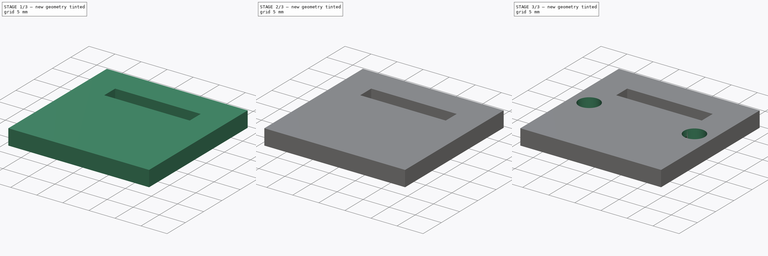
[diagram: build sequence overview — one tinted view per stage of 3, left to right]
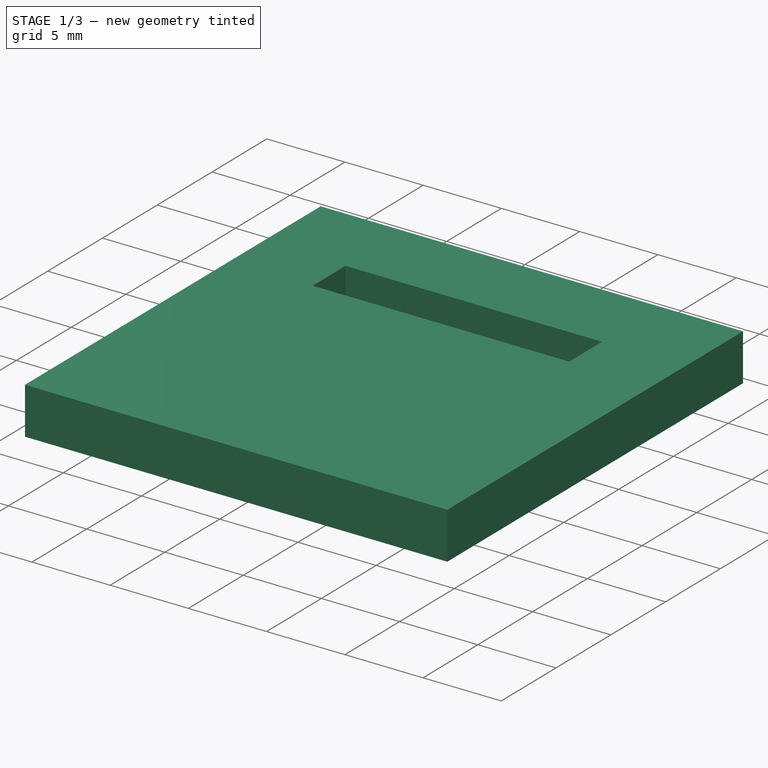
[diagram: stage 1 of 3 — iso view after this stage's code; geometry added in this stage tinted green]
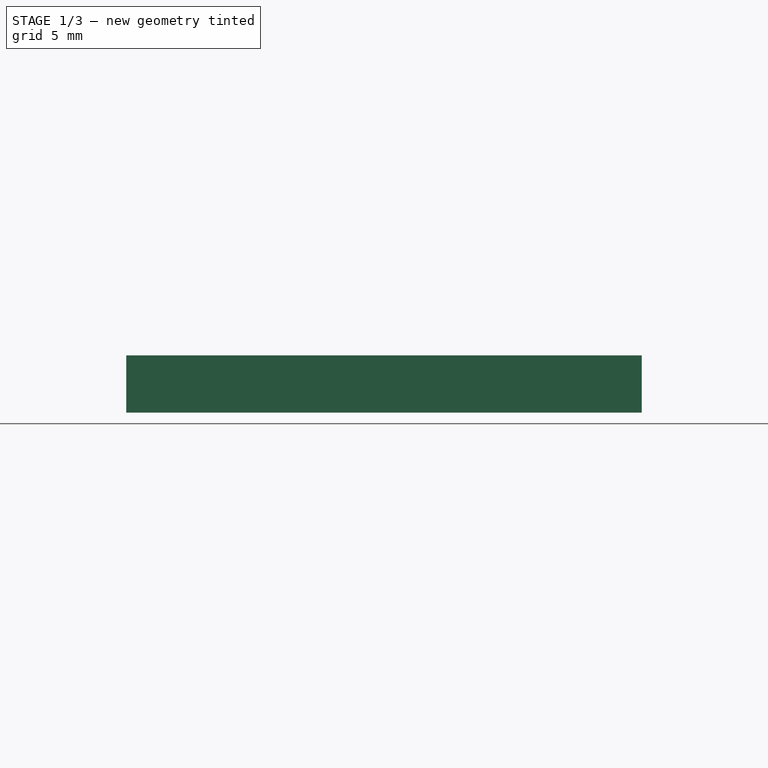
[diagram: stage 1 of 3 — front view after this stage's code; geometry added in this stage tinted green]
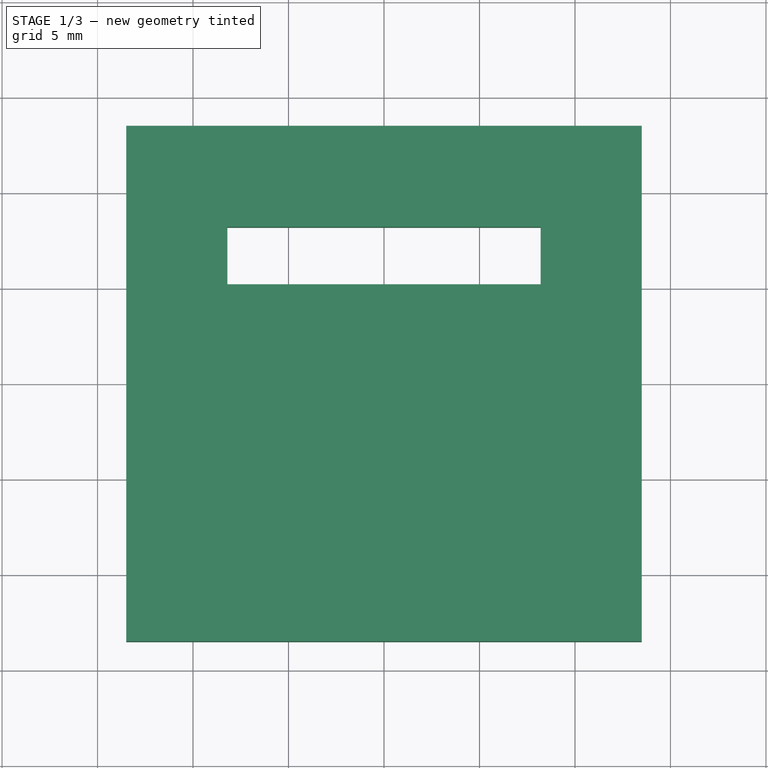
[diagram: stage 1 of 3 — top view after this stage's code; geometry added in this stage tinted green]
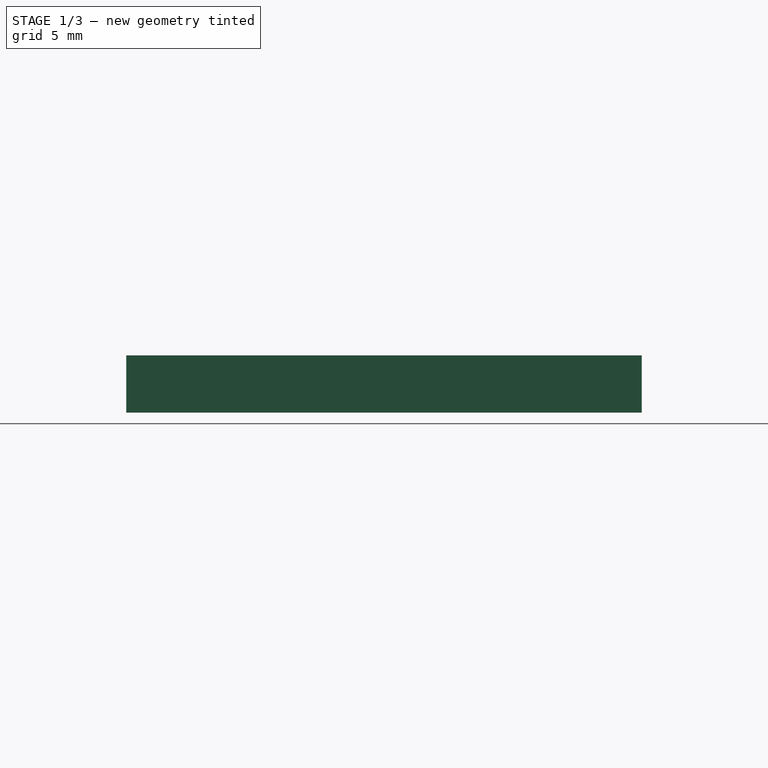
[diagram: stage 1 of 3 — right view after this stage's code; geometry added in this stage tinted green]
FCSTD DOCUMENT  (FreeCAD 0.17R12795 (Git))
Label: ADXL335 0.17 top plate
License: All rights reserved
LicenseURL: http://en.wikipedia.org/wiki/All_rights_reserved
objects: Sketcher::SketchObject×4, PartDesign::Pocket×3, Spreadsheet::Sheet×1, PartDesign::Pad×1, PartDesign::Chamfer×1, PartDesign::Body×1
note: 14 computed .brp shape members not serialized (recipe doc carries the construction recipe); baked Part::Feature solids carry a one-line shape summary decoded from their .brp

FEATURE [Spreadsheet::Sheet] Spreadsheet
  cells = A1=Name; B1=Value; D1=Komment; A2=TP_height; B2(tp_height)=3; D2=TP = Top plate; A3=TP_lenght; B3(tp_length)=27; A4=TP_width; B4(tp_width)=27; A6=Pocket; A7=TP_po_length; B7(tp_po_length)=16.399999999999999; A8=TP_po_width; B8(tp_po_width)=3; A9=TP_po_depth; B9(tp_po_depth)=; A10=TP_po_distance; B10(tp_po_distance)==4.5 + 0.80000000000000004; A12=Pocket001; A13=tp_po_el_depth; B13(tp_po_el_depth)=1.8; A14="tp_po_el_distance; B14(tp_po_el_distance)=2; A15=tp_po_el_width; B15(tp_po_el_width)=16.399999999999999; A16=tp_po_el_length; B16(tp_po_el_length)=11
FEATURE [Sketcher::SketchObject] Sketch
  MapMode = 5
  Support = -> [XY_Plane]
  expr: Constraints[9] = Spreadsheet.tp_length
  expr: Constraints[8] = Spreadsheet.tp_width
  sketch-geometry (4):
    g0: LineSegment StartX=-13.5 StartY=13.5 StartZ=0 EndX=13.5 EndY=13.5 EndZ=0
    g1: LineSegment StartX=13.5 StartY=13.5 StartZ=0 EndX=13.5 EndY=-13.5 EndZ=0
    g2: LineSegment StartX=13.5 StartY=-13.5 StartZ=0 EndX=-13.5 EndY=-13.5 EndZ=0
    g3: LineSegment StartX=-13.5 StartY=-13.5 StartZ=0 EndX=-13.5 EndY=13.5 EndZ=0
  constraints (11):
    c: Coincident(g0,g1)
    c: Coincident(g1,g2)
    c: Coincident(g2,g3)
    c: Coincident(g3,g0)
    c: Horizontal(g0)
    c: Horizontal(g2)
    c: Vertical(g1)
    c: Vertical(g3)
    c: DistanceX(g0,g0) = 27
    c: DistanceY(g1,g1) = 27
    c: Symmetric(g0,g1,g-1)
FEATURE [PartDesign::Pad] Pad
  Length = 3
  Length2 = 100
  Profile = -> Sketch
  Type = 0
  expr: Length = Spreadsheet.tp_height
FEATURE [Sketcher::SketchObject] Sketch001
  ExternalGeometry = -> [Pad]
  MapMode = 5
  Placement = pos=(0,0,0) rot=(1,0,0;3.14159rad)
  Support = -> [Pad]
  expr: Constraints[10] = Spreadsheet.tp_po_length
  expr: Constraints[9] = Spreadsheet.tp_po_width
  expr: Constraints[8] = Spreadsheet.tp_po_distance
  sketch-geometry (4):
    g0: LineSegment StartX=8.2 StartY=-8.2 StartZ=0 EndX=-8.2 EndY=-8.2 EndZ=0
    g1: LineSegment StartX=-8.2 StartY=-8.2 StartZ=0 EndX=-8.2 EndY=-5.2 EndZ=0
    g2: LineSegment StartX=-8.2 StartY=-5.2 StartZ=0 EndX=8.2 EndY=-5.2 EndZ=0
    g3: LineSegment StartX=8.2 StartY=-5.2 StartZ=0 EndX=8.2 EndY=-8.2 EndZ=0
  constraints (12):
    c: Coincident(g0,g1)
    c: Coincident(g1,g2)
    c: Coincident(g2,g3)
    c: Coincident(g3,g0)
    c: Horizontal(g0)
    c: Horizontal(g2)
    c: Vertical(g1)
    c: Vertical(g3)
    c: DistanceY(g-3,g0) = 5.3
    c: DistanceY(g3,g3) = 3
    c: DistanceX(g0,g0) = 16.4
    c: Symmetric(g2,g1,g-2)
FEATURE [PartDesign::Pocket] Pocket
  BaseFeature = -> Pad
  Length = 5
  Profile = -> Sketch001
  Type = 0
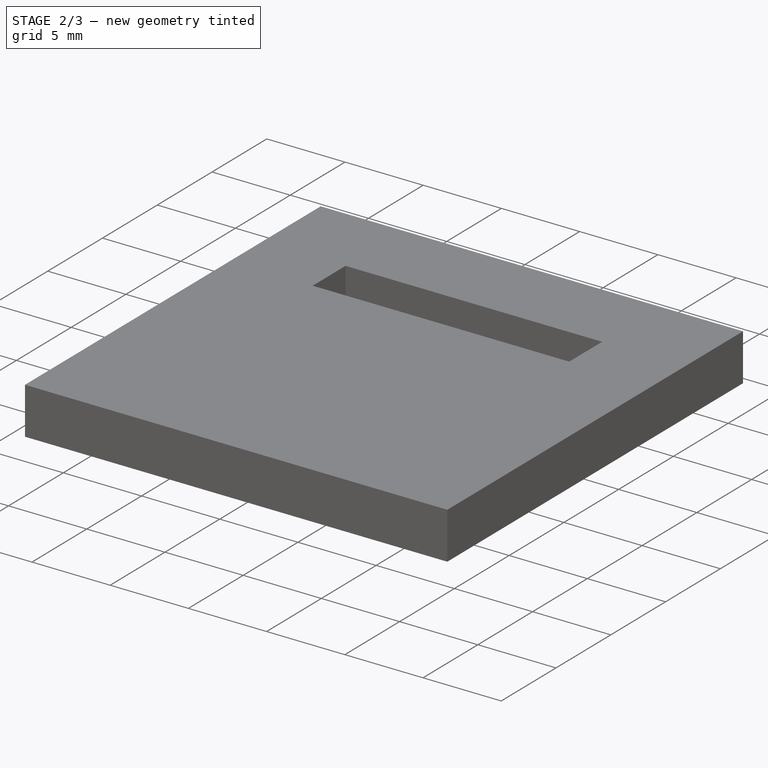
[diagram: stage 2 of 3 — iso view after this stage's code; geometry added in this stage tinted green]
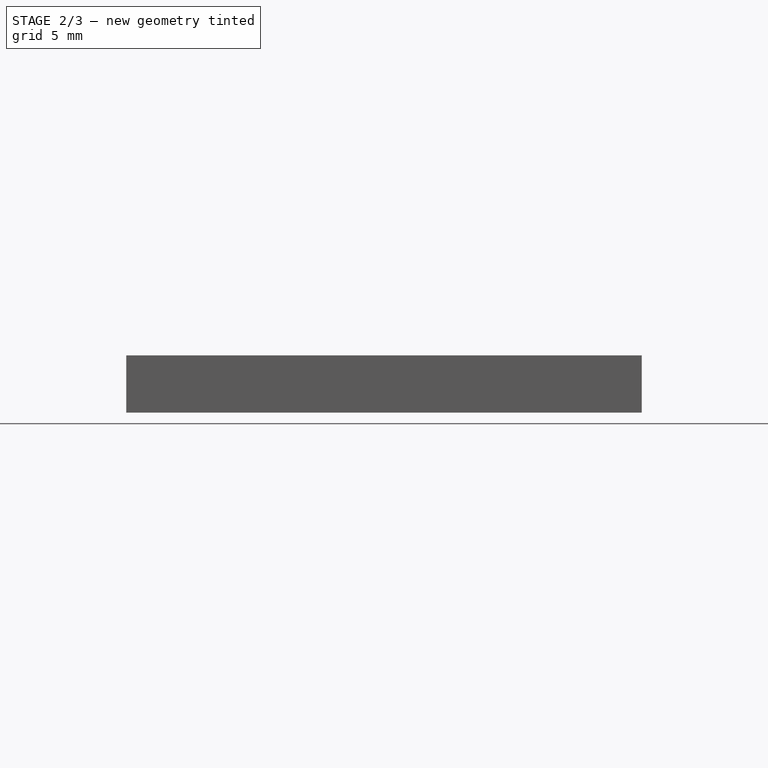
[diagram: stage 2 of 3 — front view after this stage's code; geometry added in this stage tinted green]
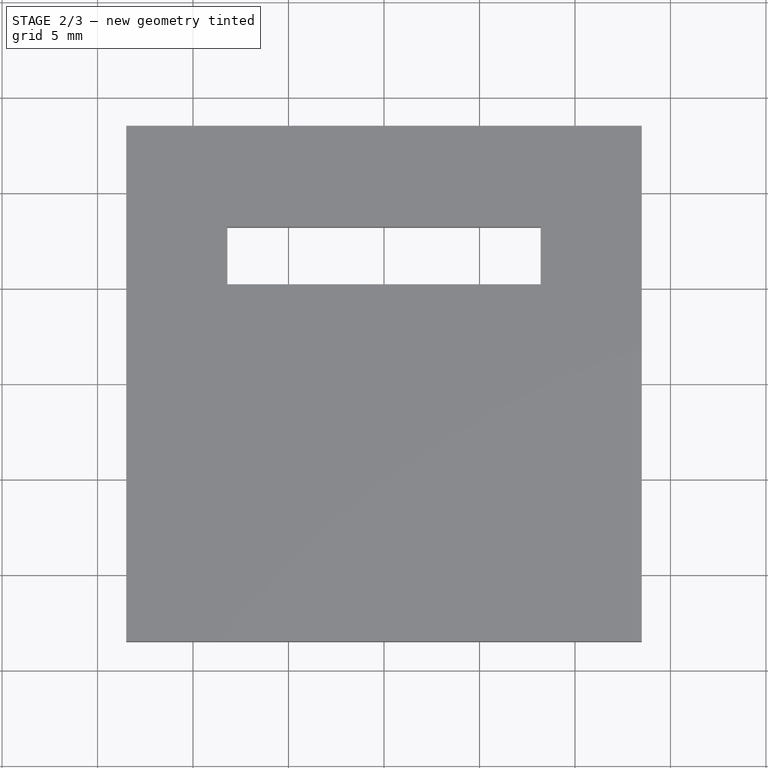
[diagram: stage 2 of 3 — top view after this stage's code; geometry added in this stage tinted green]
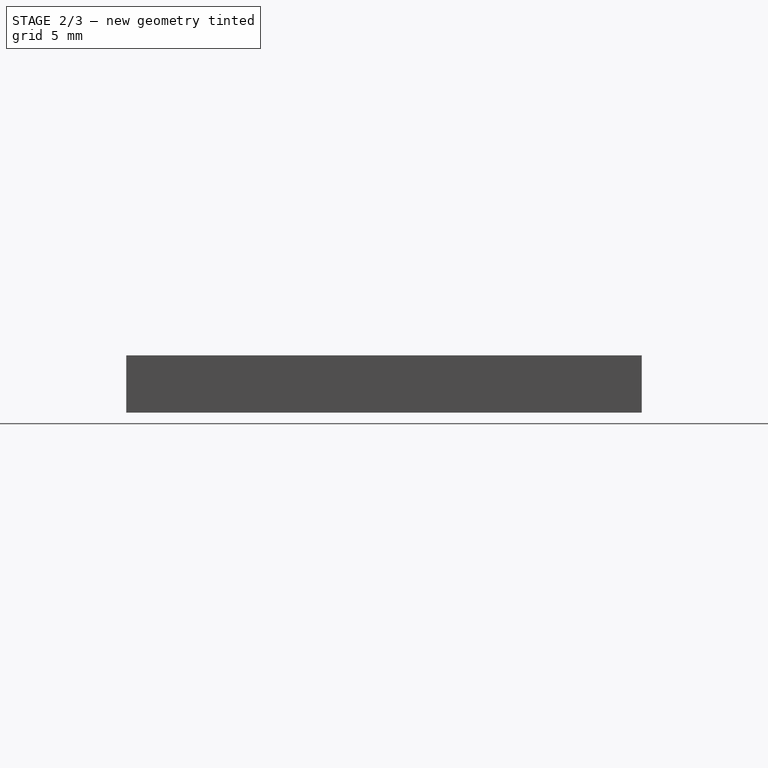
[diagram: stage 2 of 3 — right view after this stage's code; geometry added in this stage tinted green]
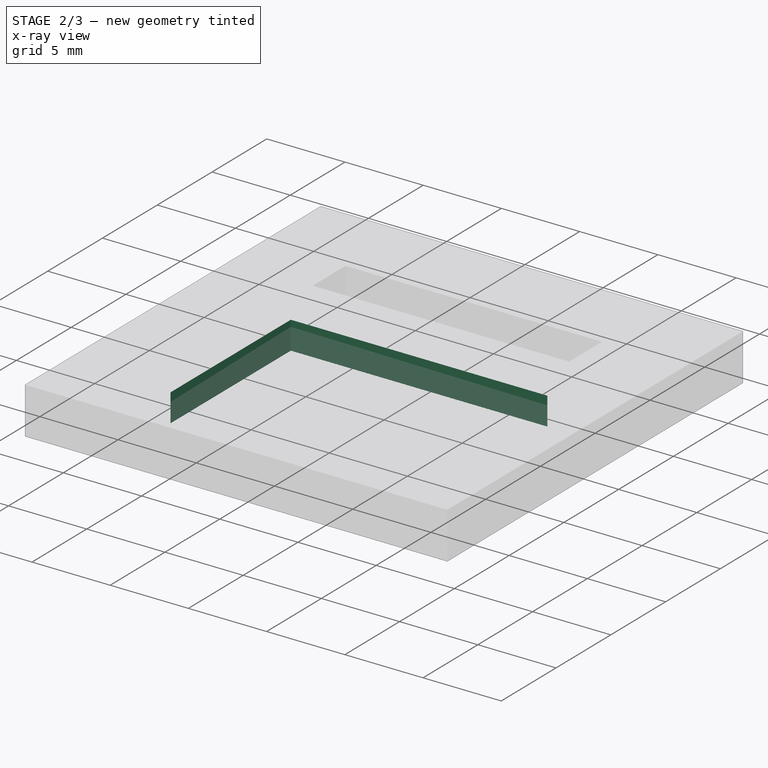
[diagram: stage 2 of 3 — x-ray composite at the iso view; earlier geometry ghosted, this stage's added geometry solid]
FEATURE [Sketcher::SketchObject] Sketch002
  ExternalGeometry = -> [Pocket]
  MapMode = 5
  Placement = pos=(0,0,0) rot=(1,0,0;3.14159rad)
  Support = -> [Pocket]
  expr: Constraints[11] = Spreadsheet.tp_po_el_length
  expr: Constraints[9] = Spreadsheet.tp_po_el_width
  expr: Constraints[8] = Spreadsheet.tp_po_el_distance
  sketch-geometry (4):
    g0: LineSegment StartX=8.2 StartY=-3.2 StartZ=0 EndX=-8.2 EndY=-3.2 EndZ=0
    g1: LineSegment StartX=-8.2 StartY=-3.2 StartZ=0 EndX=-8.2 EndY=7.8 EndZ=0
    g2: LineSegment StartX=-8.2 StartY=7.8 StartZ=0 EndX=8.2 EndY=7.8 EndZ=0
    g3: LineSegment StartX=8.2 StartY=7.8 StartZ=0 EndX=8.2 EndY=-3.2 EndZ=0
  constraints (12):
    c: Coincident(g0,g1)
    c: Coincident(g1,g2)
    c: Coincident(g2,g3)
    c: Coincident(g3,g0)
    c: Horizontal(g0)
    c: Horizontal(g2)
    c: Vertical(g1)
    c: Vertical(g3)
    c: DistanceY(g-3,g0) = 2
    c: DistanceX(g2,g2) = 16.4
    c: Symmetric(g1,g2,g-2)
    c: DistanceY(g1,g1) = 11
FEATURE [PartDesign::Pocket] Pocket001
  BaseFeature = -> Pocket
  Length = 1.8
  Profile = -> Sketch002
  Type = 0
  expr: Length = Spreadsheet.tp_po_el_depth
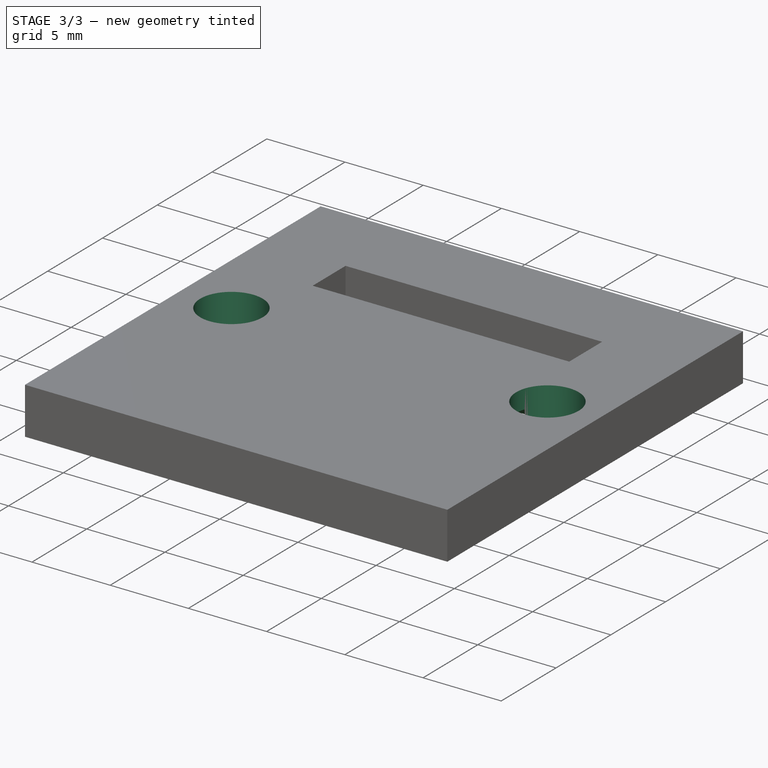
[diagram: stage 3 of 3 — iso view after this stage's code; geometry added in this stage tinted green]
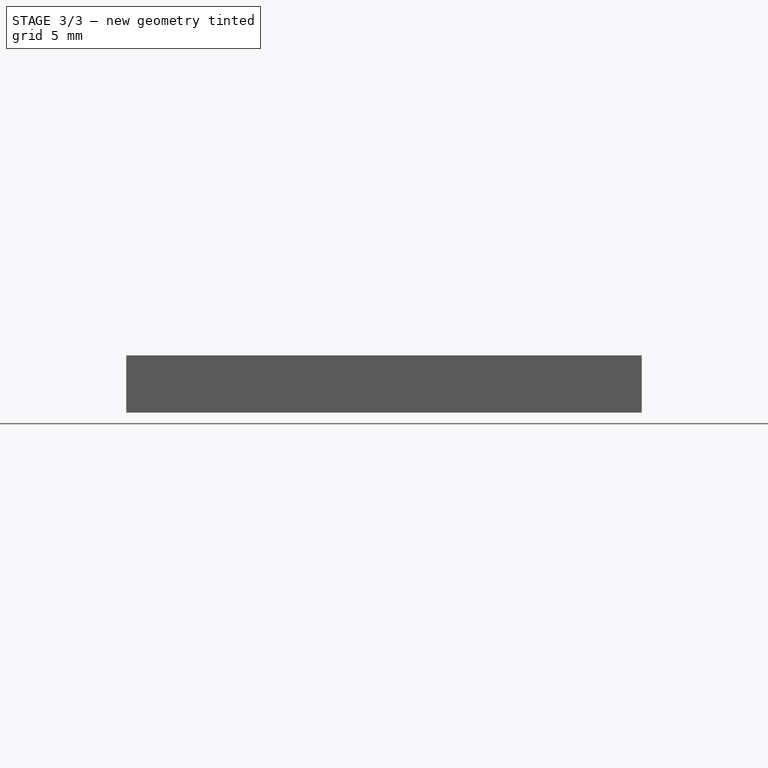
[diagram: stage 3 of 3 — front view after this stage's code; geometry added in this stage tinted green]
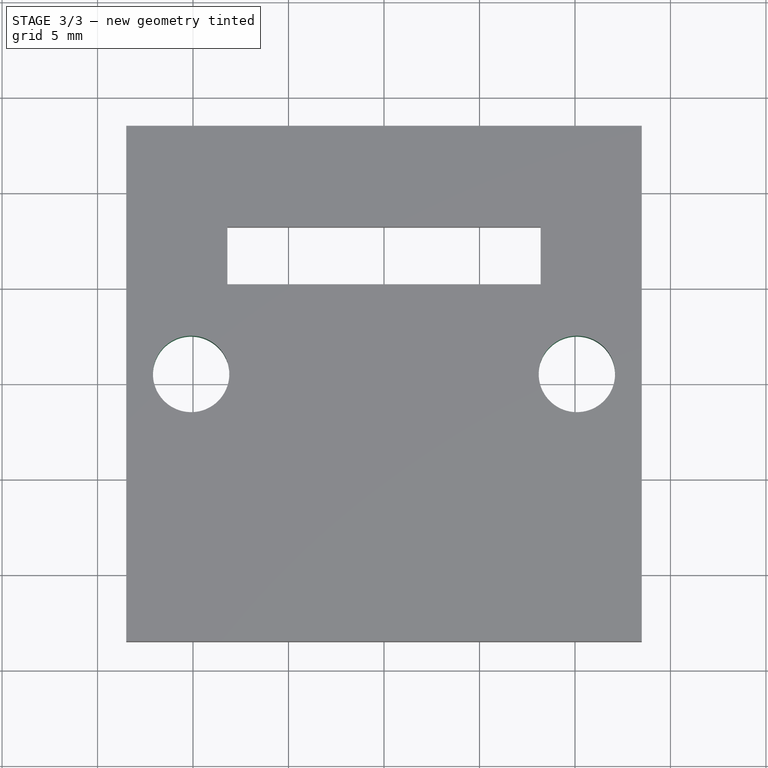
[diagram: stage 3 of 3 — top view after this stage's code; geometry added in this stage tinted green]
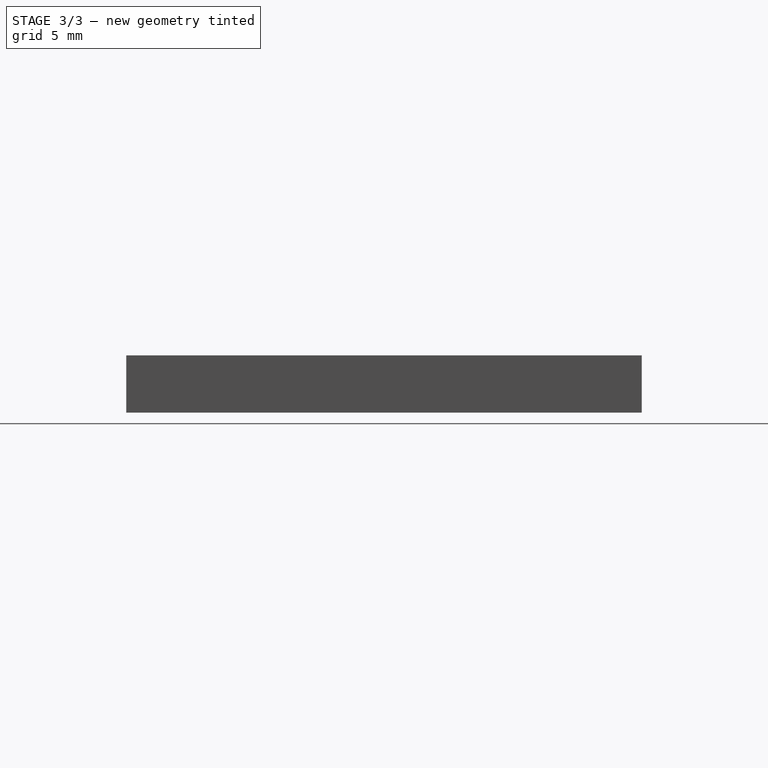
[diagram: stage 3 of 3 — right view after this stage's code; geometry added in this stage tinted green]
FEATURE [PartDesign::Chamfer] Chamfer
  Base = -> Pocket001 [Edge17,Edge18,Edge19,Edge16,Edge12,Edge14,Edge15,Edge13]
  BaseFeature = -> Pocket001
  Size = 0.6
FEATURE [Sketcher::SketchObject] Sketch003
  ExternalGeometry = -> [Chamfer]
  MapMode = 5
  Placement = pos=(0,0,3) rot=(0,0,1;0rad)
  Support = -> [Chamfer]
  sketch-geometry (3):
    g0: Circle CenterX=-10.1 CenterY=0.5 CenterZ=0 NormalX=0 NormalY=0 NormalZ=1 AngleXU=0 Radius=2
    g1: Circle CenterX=10.1 CenterY=0.5 CenterZ=0 NormalX=0 NormalY=0 NormalZ=1 AngleXU=0 Radius=2
    g2: LineSegment [constr] StartX=-10.1 StartY=0.5 StartZ=0 EndX=10.1 EndY=0.5 EndZ=0
  constraints (8):
    c: Radius(g1) = 2
    c: Equal(g0,g1)
    c: Horizontal(g2)
    c: Coincident(g1,g2)
    c: Coincident(g2,g0)
    c: DistanceX(g2,g2) = 20.2
    c: DistanceY(g0,g-3) = 13
    c: Symmetric(g0,g1,g-2)
FEATURE [PartDesign::Pocket] Pocket002
  BaseFeature = -> Chamfer
  Length = 5
  Profile = -> Sketch003
  Type = 1
FEATURE [PartDesign::Body] Body
  Group = -> [Sketch,Pad,Sketch001,Pocket,Sketch002,Pocket001,Chamfer,Sketch003,Pocket002]
  Origin = -> Origin
  Tip = -> Pocket002
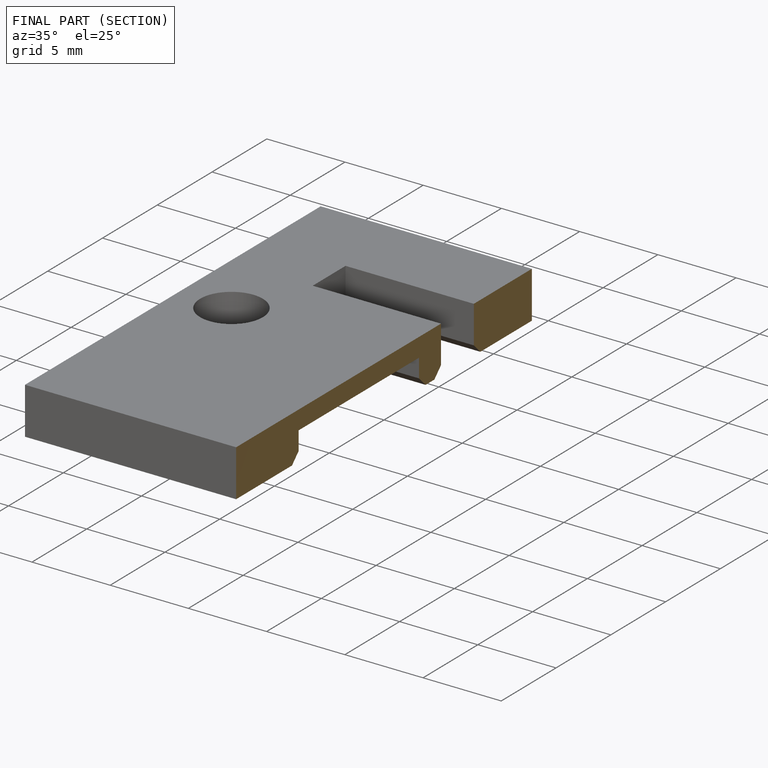
[diagram: finished part — half-section view (interior)]
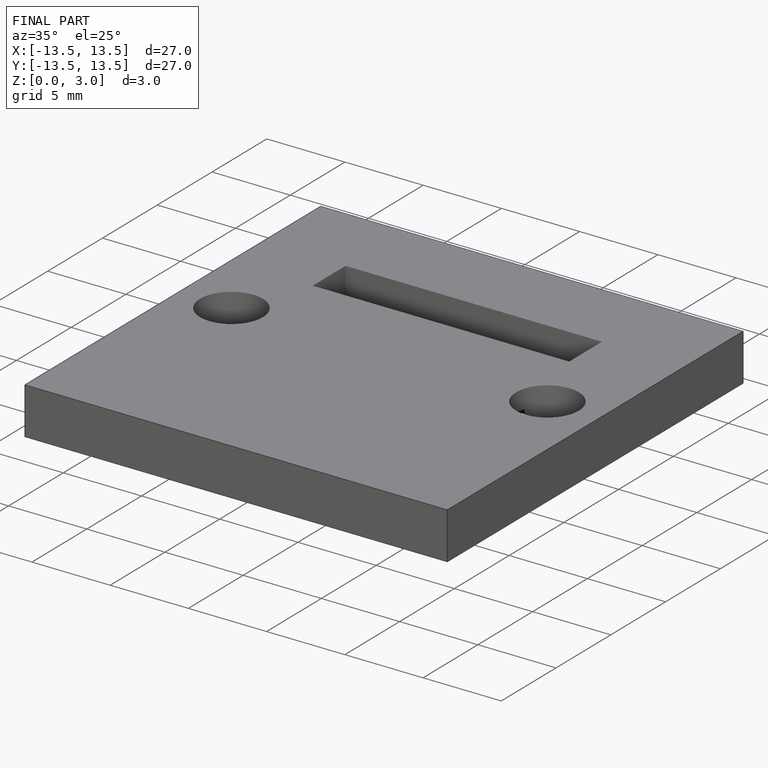
[diagram: finished part — iso view with bounding-box wireframe]
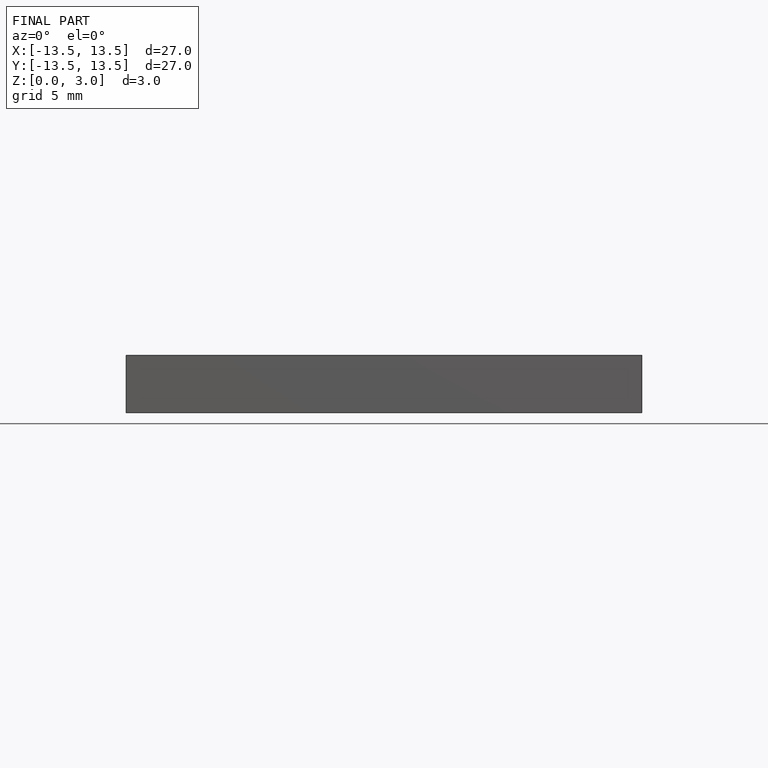
[diagram: finished part — front view with bounding-box wireframe]
